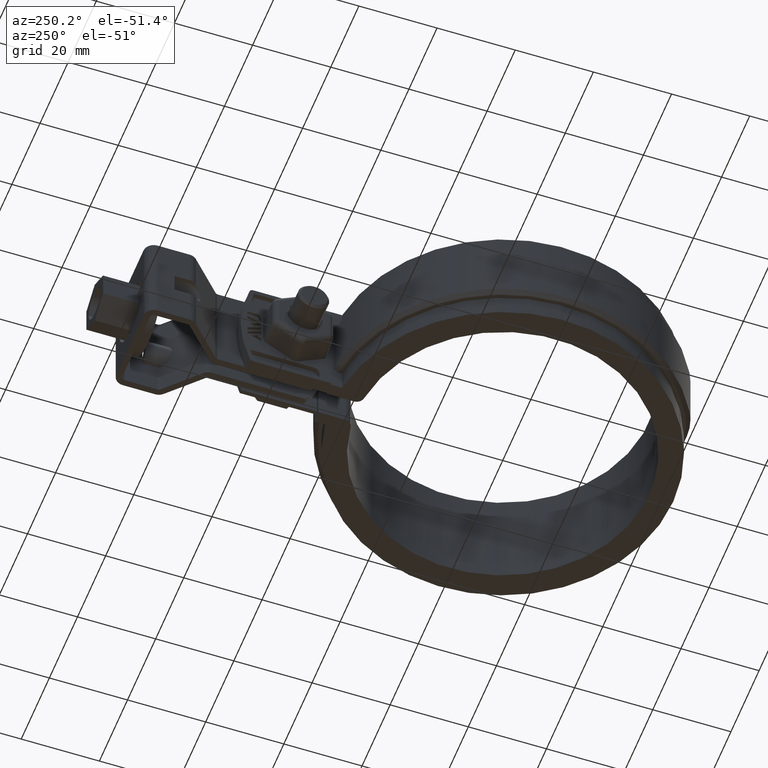
[diagram: clean part render]
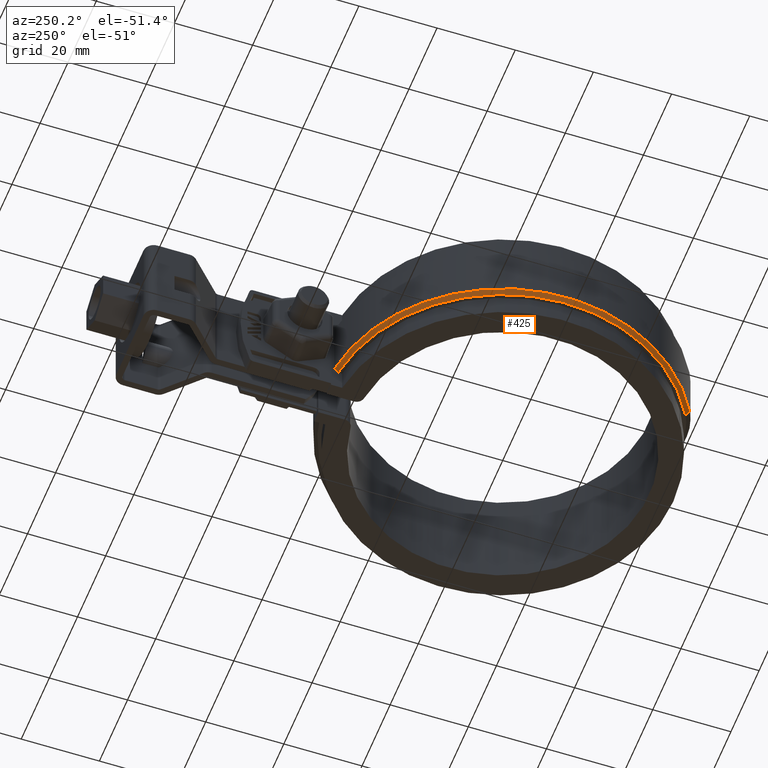
[diagram: same view with one face highlighted and labeled with its STEP entity id]
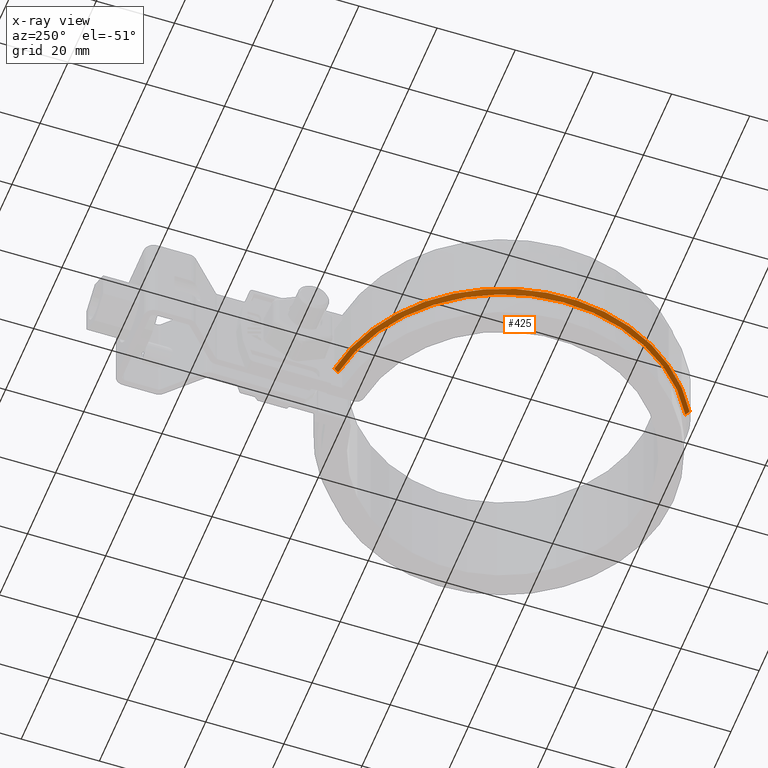
[diagram: x-ray of the same camera — body ghosted, the highlighted face saturated]
A machine part, auxiliary view. The second image highlights one B-rep face of the part: STEP entity #425.
The next image is the same camera in x-ray: the body ghosted, the highlighted face saturated — about 0% of this face is hidden behind the body in this view.
In plain terms, the highlighted conical surface has half-angle 45 deg.
Its self-contained STEP definition (entity closure, byte-faithful):
#425 = ADVANCED_FACE( '', ( #798 ), #799, .T. );
#798 = FACE_OUTER_BOUND( '', #1714, .T. );
#799 = CONICAL_SURFACE( '', #1715, 45.6500000000000, 0.785398163397448 );
#1714 = EDGE_LOOP( '', ( #3333, #3334, #3335, #3336 ) );
#1715 = AXIS2_PLACEMENT_3D( '', #3337, #3338, #3339 );
#3333 = ORIENTED_EDGE( '', *, *, #5515, .F. );
#3334 = ORIENTED_EDGE( '', *, *, #5535, .F. );
#3335 = ORIENTED_EDGE( '', *, *, #5536, .F. );
#3336 = ORIENTED_EDGE( '', *, *, #5537, .F. );
#3337 = CARTESIAN_POINT( '', ( 0.000000000000000, 0.000000000000000, -7.50000000000000 ) );
#3338 = DIRECTION( '', ( 0.000000000000000, 0.000000000000000, 1.00000000000000 ) );
#3339 = DIRECTION( '', ( 1.00000000000000, 0.000000000000000, 0.000000000000000 ) );
#5515 = EDGE_CURVE( '', #6489, #6476, #6491, .T. );
#5535 = EDGE_CURVE( '', #6524, #6489, #6525, .F. );
#5536 = EDGE_CURVE( '', #6439, #6524, #6526, .T. );
#5537 = EDGE_CURVE( '', #6476, #6439, #6527, .T. );
#6439 = VERTEX_POINT( '', #8932 );
#6476 = VERTEX_POINT( '', #9008 );
#6489 = VERTEX_POINT( '', #9030 );
#6491 = B_SPLINE_CURVE_WITH_KNOTS( '', 3, ( #9033, #9034, #9035, #9036 ), .UNSPECIFIED., .F., .F., ( 4, 4 ), ( 0.000000000000000, 0.00142055609219602 ), .UNSPECIFIED. );
#6524 = VERTEX_POINT( '', #9085 );
#6525 = CIRCLE( '', #9086, 44.6500000000000 );
#6526 = LINE( '', #9087, #9088 );
#6527 = CIRCLE( '', #9089, 45.6500000000000 );
#8932 = CARTESIAN_POINT( '', ( -22.5484975690429, -39.6924143556281, -7.50000000000000 ) );
#9008 = CARTESIAN_POINT( '', ( -6.00000000000000, 45.2539777257204, -7.50000000000000 ) );
#9030 = CARTESIAN_POINT( '', ( -6.00000000000000, 44.2450279692532, -8.50000000000000 ) );
#9033 = CARTESIAN_POINT( '', ( -6.00000000000000, 44.2450279692532, -8.50000000000000 ) );
#9034 = CARTESIAN_POINT( '', ( -6.00000000000000, 44.5813781116256, -8.16670052728487 ) );
#9035 = CARTESIAN_POINT( '', ( -6.00000000000000, 44.9176939588437, -7.83336644240438 ) );
#9036 = CARTESIAN_POINT( '', ( -6.00000000000000, 45.2539777257204, -7.50000000000000 ) );
#9085 = CARTESIAN_POINT( '', ( -22.0545545773880, -38.8229200652529, -8.50000000000000 ) );
#9086 = AXIS2_PLACEMENT_3D( '', #10920, #10921, #10922 );
#9087 = CARTESIAN_POINT( '', ( -22.5484975690429, -39.6924143556281, -7.50000000000000 ) );
#9088 = VECTOR( '', #10923, 1000.00000000000 );
#9089 = AXIS2_PLACEMENT_3D( '', #10924, #10925, #10926 );
#10920 = CARTESIAN_POINT( '', ( 0.000000000000000, 0.000000000000000, -8.50000000000000 ) );
#10921 = DIRECTION( '', ( 0.000000000000000, 0.000000000000000, 1.00000000000000 ) );
#10922 = DIRECTION( '', ( 1.00000000000000, 0.000000000000000, 0.000000000000000 ) );
#10923 = DIRECTION( '', ( 0.349270438918700, 0.614825308927290, -0.707106781186548 ) );
#10924 = CARTESIAN_POINT( '', ( 0.000000000000000, 0.000000000000000, -7.50000000000000 ) );
#10925 = DIRECTION( '', ( 0.000000000000000, 0.000000000000000, 1.00000000000000 ) );
#10926 = DIRECTION( '', ( 1.00000000000000, 0.000000000000000, 0.000000000000000 ) );